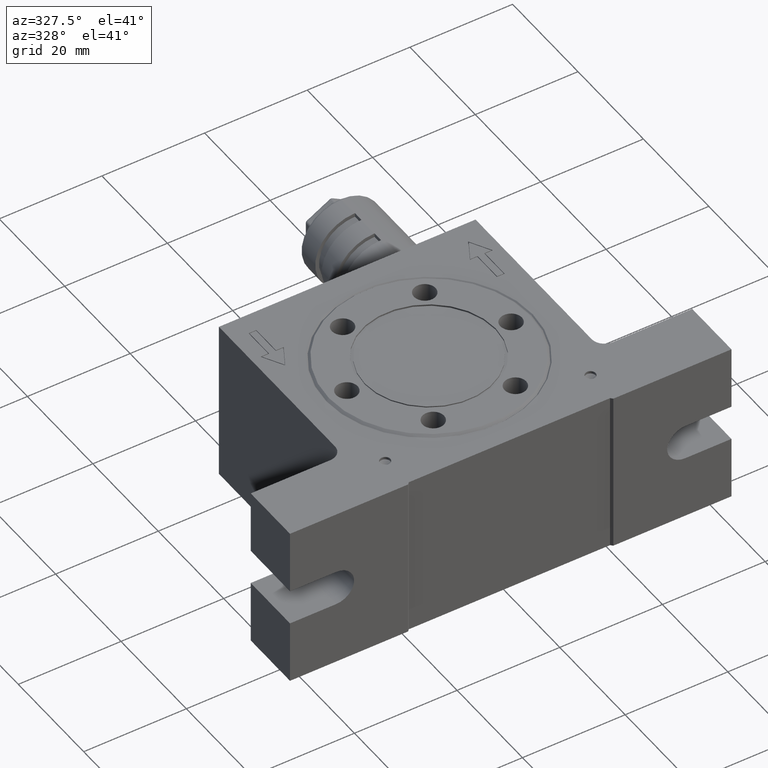
[diagram: clean part render]
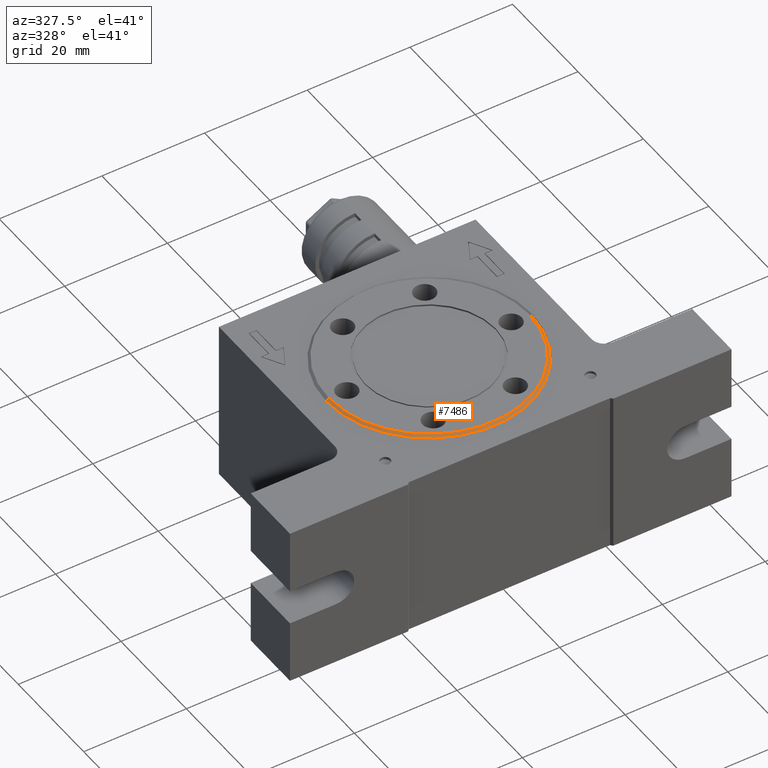
[diagram: same view with one face highlighted and labeled with its STEP entity id]
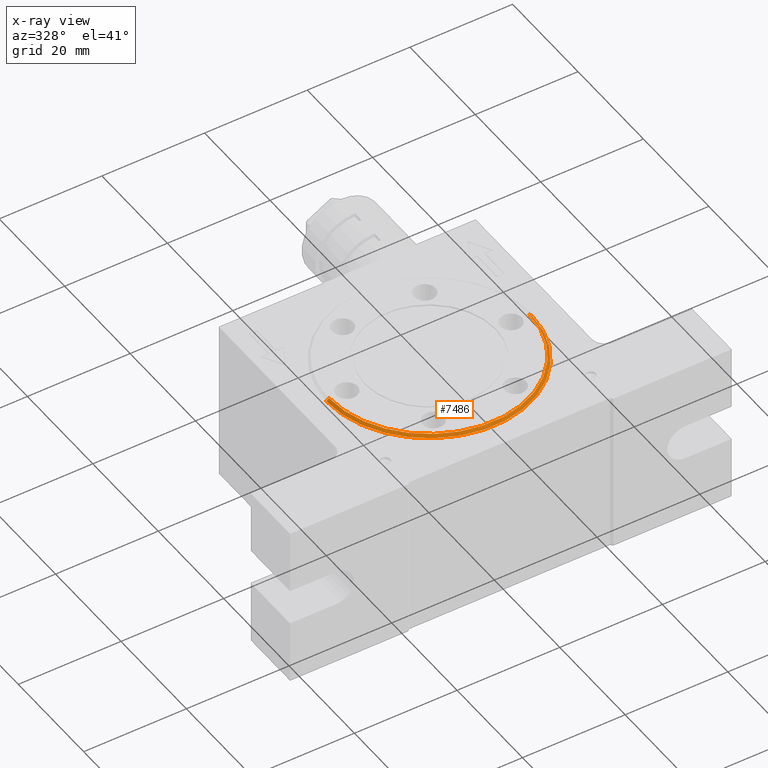
[diagram: x-ray of the same camera — body ghosted, the highlighted face saturated]
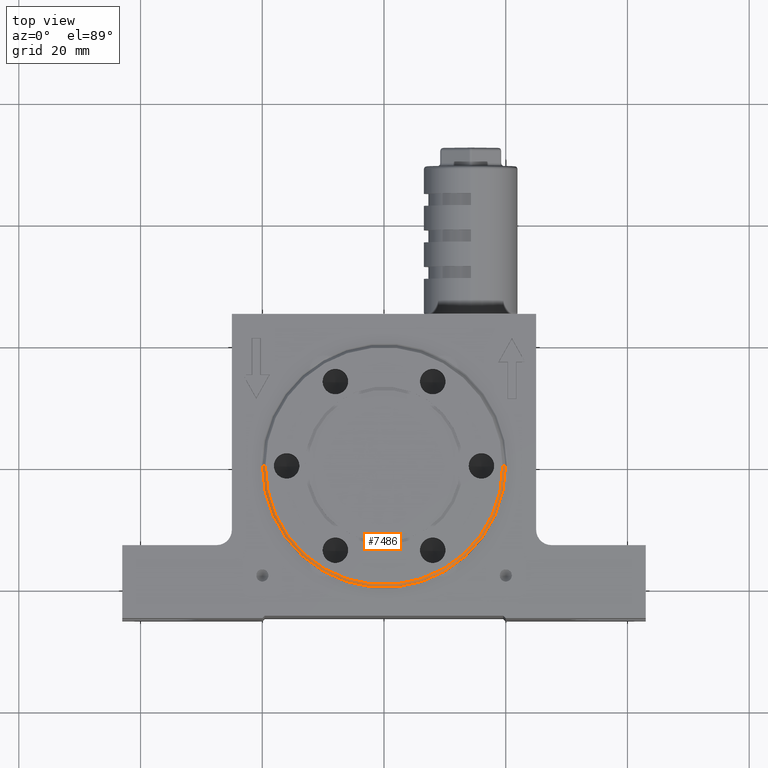
[diagram: same view with one face highlighted and labeled with its STEP entity id]
A machine part, auxiliary view. The second image highlights one B-rep face of the part: STEP entity #7486.
The next image is the same camera in x-ray: the body ghosted, the highlighted face saturated — about 0% of this face is hidden behind the body in this view.
A second angle (top view) of the same face is appended — the face is thin or edge-on in the first view.
In plain terms, the highlighted conical surface has half-angle 45 deg.
Its self-contained STEP definition (entity closure, byte-faithful):
#144 = CARTESIAN_POINT ( 'NONE',  ( 19.50000000000000400, 2.418677428316022700E-015, 16.25000000000000000 ) ) ;
#613 = AXIS2_PLACEMENT_3D ( 'NONE', #7806, #1930, #4864 ) ;
#615 = DIRECTION ( 'NONE',  ( 0.7071067811865451300, 8.659560562354903300E-017, -0.7071067811865500200 ) ) ;
#688 = CIRCLE ( 'NONE', #797, 19.50000000000000400 ) ;
#797 = AXIS2_PLACEMENT_3D ( 'NONE', #2407, #8256, #2351 ) ;
#1493 = AXIS2_PLACEMENT_3D ( 'NONE', #1647, #1557, #8531 ) ;
#1550 = EDGE_CURVE ( 'NONE', #9098, #3449, #4624, .T. ) ;
#1557 = DIRECTION ( 'NONE',  ( 0.0000000000000000000, 0.0000000000000000000, -1.000000000000000000 ) ) ;
#1637 = VECTOR ( 'NONE', #7573, 1000.000000000000100 ) ;
#1647 = CARTESIAN_POINT ( 'NONE',  ( 0.0000000000000000000, 0.0000000000000000000, 16.25000000000000000 ) ) ;
#1930 = DIRECTION ( 'NONE',  ( 0.0000000000000000000, 0.0000000000000000000, -1.000000000000000000 ) ) ;
#1979 = CARTESIAN_POINT ( 'NONE',  ( -19.50000000000000400, 0.0000000000000000000, 16.25000000000000000 ) ) ;
#2005 = ORIENTED_EDGE ( 'NONE', *, *, #6751, .F. ) ;
#2013 = VERTEX_POINT ( 'NONE', #144 ) ;
#2101 = FACE_OUTER_BOUND ( 'NONE', #7194, .T. ) ;
#2351 = DIRECTION ( 'NONE',  ( -1.000000000000000000, 0.0000000000000000000, 0.0000000000000000000 ) ) ;
#2407 = CARTESIAN_POINT ( 'NONE',  ( 0.0000000000000000000, 0.0000000000000000000, 16.25000000000000000 ) ) ;
#2590 = LINE ( 'NONE', #9599, #4446 ) ;
#2978 = VERTEX_POINT ( 'NONE', #1979 ) ;
#3449 = VERTEX_POINT ( 'NONE', #3611 ) ;
#3611 = CARTESIAN_POINT ( 'NONE',  ( -20.00000000000000000, 2.449293598294706500E-015, 15.75000000000000000 ) ) ;
#3912 = ORIENTED_EDGE ( 'NONE', *, *, #9054, .T. ) ;
#4446 = VECTOR ( 'NONE', #615, 1000.000000000000100 ) ;
#4624 = CIRCLE ( 'NONE', #613, 20.00000000000000000 ) ;
#4864 = DIRECTION ( 'NONE',  ( -1.000000000000000000, 0.0000000000000000000, 0.0000000000000000000 ) ) ;
#6310 = ORIENTED_EDGE ( 'NONE', *, *, #7981, .F. ) ;
#6751 = EDGE_CURVE ( 'NONE', #2013, #9098, #2590, .T. ) ;
#7194 = EDGE_LOOP ( 'NONE', ( #2005, #6310, #3912, #8731 ) ) ;
#7480 = CONICAL_SURFACE ( 'NONE', #1493, 19.50000000000000400, 0.7853981633974447300 ) ;
#7486 = ADVANCED_FACE ( 'NONE', ( #2101 ), #7480, .T. ) ;
#7573 = DIRECTION ( 'NONE',  ( -0.7071067811865451300, 0.0000000000000000000, -0.7071067811865500200 ) ) ;
#7607 = CARTESIAN_POINT ( 'NONE',  ( -19.50000000000000400, 0.0000000000000000000, 16.25000000000000000 ) ) ;
#7806 = CARTESIAN_POINT ( 'NONE',  ( 0.0000000000000000000, 0.0000000000000000000, 15.75000000000000000 ) ) ;
#7981 = EDGE_CURVE ( 'NONE', #2978, #2013, #688, .T. ) ;
#8256 = DIRECTION ( 'NONE',  ( -0.0000000000000000000, -0.0000000000000000000, 1.000000000000000000 ) ) ;
#8403 = LINE ( 'NONE', #7607, #1637 ) ;
#8531 = DIRECTION ( 'NONE',  ( -1.000000000000000000, 0.0000000000000000000, 0.0000000000000000000 ) ) ;
#8731 = ORIENTED_EDGE ( 'NONE', *, *, #1550, .F. ) ;
#9046 = CARTESIAN_POINT ( 'NONE',  ( 20.00000000000000000, 0.0000000000000000000, 15.75000000000000000 ) ) ;
#9054 = EDGE_CURVE ( 'NONE', #2978, #3449, #8403, .T. ) ;
#9098 = VERTEX_POINT ( 'NONE', #9046 ) ;
#9599 = CARTESIAN_POINT ( 'NONE',  ( 19.50000000000000400, 2.388061258337339300E-015, 16.25000000000000000 ) ) ;